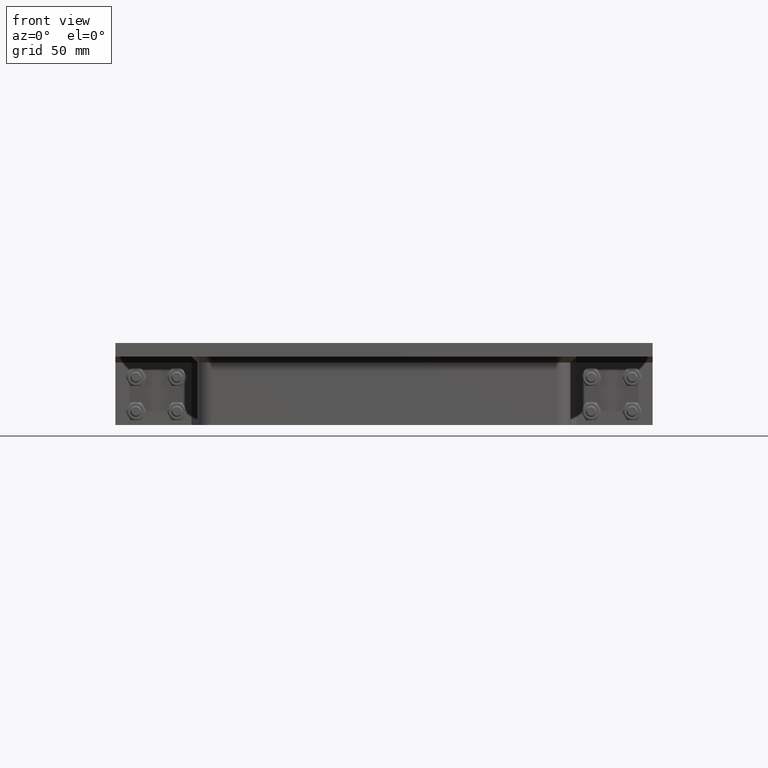
[diagram: clean part render]
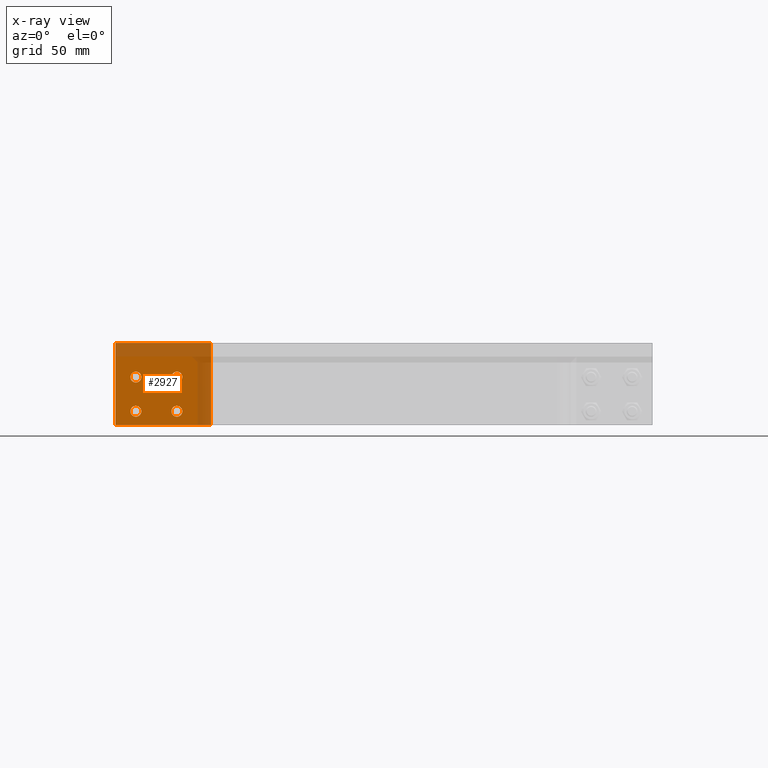
[diagram: x-ray — body ghosted, one internal face saturated and labeled with its STEP entity id]
A machine part, front view, then the same camera in x-ray: the body is ghosted and one INTERNAL B-rep face — a face not visible from any outside direction — is saturated and labeled: STEP entity #2927.
In plain terms, the highlighted planar face has unit normal (0, 1, 0).
Its self-contained STEP definition (entity closure, byte-faithful):
#297=FACE_BOUND('',#800,.T.);
#298=FACE_BOUND('',#801,.T.);
#299=FACE_BOUND('',#802,.T.);
#300=FACE_BOUND('',#803,.T.);
#400=CIRCLE('',#3383,4.);
#402=CIRCLE('',#3386,4.);
#404=CIRCLE('',#3389,4.);
#406=CIRCLE('',#3392,4.);
#564=FACE_OUTER_BOUND('',#799,.T.);
#799=EDGE_LOOP('',(#2465,#2466,#2467,#2468));
#800=EDGE_LOOP('',(#2469));
#801=EDGE_LOOP('',(#2470));
#802=EDGE_LOOP('',(#2471));
#803=EDGE_LOOP('',(#2472));
#1038=LINE('',#4899,#1261);
#1042=LINE('',#4907,#1265);
#1045=LINE('',#4913,#1268);
#1048=LINE('',#4918,#1271);
#1261=VECTOR('',#4058,10.);
#1265=VECTOR('',#4064,10.);
#1268=VECTOR('',#4069,10.);
#1271=VECTOR('',#4074,10.);
#1483=VERTEX_POINT('',#4875);
#1485=VERTEX_POINT('',#4881);
#1487=VERTEX_POINT('',#4887);
#1489=VERTEX_POINT('',#4893);
#1490=VERTEX_POINT('',#4897);
#1491=VERTEX_POINT('',#4898);
#1494=VERTEX_POINT('',#4906);
#1496=VERTEX_POINT('',#4912);
#1815=EDGE_CURVE('',#1483,#1483,#400,.T.);
#1818=EDGE_CURVE('',#1485,#1485,#402,.T.);
#1821=EDGE_CURVE('',#1487,#1487,#404,.T.);
#1824=EDGE_CURVE('',#1489,#1489,#406,.T.);
#1825=EDGE_CURVE('',#1490,#1491,#1038,.T.);
#1829=EDGE_CURVE('',#1491,#1494,#1042,.T.);
#1832=EDGE_CURVE('',#1494,#1496,#1045,.T.);
#1835=EDGE_CURVE('',#1496,#1490,#1048,.T.);
#2465=ORIENTED_EDGE('',*,*,#1835,.T.);
#2466=ORIENTED_EDGE('',*,*,#1825,.T.);
#2467=ORIENTED_EDGE('',*,*,#1829,.T.);
#2468=ORIENTED_EDGE('',*,*,#1832,.T.);
#2469=ORIENTED_EDGE('',*,*,#1815,.T.);
#2470=ORIENTED_EDGE('',*,*,#1818,.T.);
#2471=ORIENTED_EDGE('',*,*,#1821,.T.);
#2472=ORIENTED_EDGE('',*,*,#1824,.T.);
#2793=PLANE('',#3397);
#2927=ADVANCED_FACE('',(#564,#297,#298,#299,#300),#2793,.F.);
#3383=AXIS2_PLACEMENT_3D('',#4877,#4033,#4034);
#3386=AXIS2_PLACEMENT_3D('',#4883,#4040,#4041);
#3389=AXIS2_PLACEMENT_3D('',#4889,#4047,#4048);
#3392=AXIS2_PLACEMENT_3D('',#4895,#4054,#4055);
#3397=AXIS2_PLACEMENT_3D('',#4920,#4076,#4077);
#4033=DIRECTION('center_axis',(0.,0.,1.));
#4034=DIRECTION('ref_axis',(1.,0.,0.));
#4040=DIRECTION('center_axis',(0.,0.,1.));
#4041=DIRECTION('ref_axis',(1.,0.,0.));
#4047=DIRECTION('center_axis',(0.,0.,1.));
#4048=DIRECTION('ref_axis',(1.,0.,0.));
#4054=DIRECTION('center_axis',(0.,0.,1.));
#4055=DIRECTION('ref_axis',(1.,0.,0.));
#4058=DIRECTION('',(2.22044604925031E-16,-1.,0.));
#4064=DIRECTION('',(-1.,0.,0.));
#4069=DIRECTION('',(2.22044604925031E-16,1.,0.));
#4074=DIRECTION('',(1.,0.,0.));
#4076=DIRECTION('center_axis',(0.,0.,1.));
#4077=DIRECTION('ref_axis',(1.,0.,0.));
#4875=CARTESIAN_POINT('',(16.,-20.,0.));
#4877=CARTESIAN_POINT('Origin',(20.,-20.,0.));
#4881=CARTESIAN_POINT('',(-14.,5.00000000000001,0.));
#4883=CARTESIAN_POINT('Origin',(-9.99999999999997,5.00000000000001,0.));
#4887=CARTESIAN_POINT('',(16.,5.00000000000001,0.));
#4889=CARTESIAN_POINT('Origin',(20.,5.00000000000001,0.));
#4893=CARTESIAN_POINT('',(-14.,-20.,0.));
#4895=CARTESIAN_POINT('Origin',(-9.99999999999998,-20.,0.));
#4897=CARTESIAN_POINT('',(35.,30.,0.));
#4898=CARTESIAN_POINT('',(35.,-30.,0.));
#4899=CARTESIAN_POINT('',(35.,30.,0.));
#4906=CARTESIAN_POINT('',(-35.,-30.,0.));
#4907=CARTESIAN_POINT('',(35.,-30.,0.));
#4912=CARTESIAN_POINT('',(-35.,30.,0.));
#4913=CARTESIAN_POINT('',(-35.,-30.,0.));
#4918=CARTESIAN_POINT('',(-35.,30.,0.));
#4920=CARTESIAN_POINT('Origin',(0.,5.12410626750072E-15,0.));